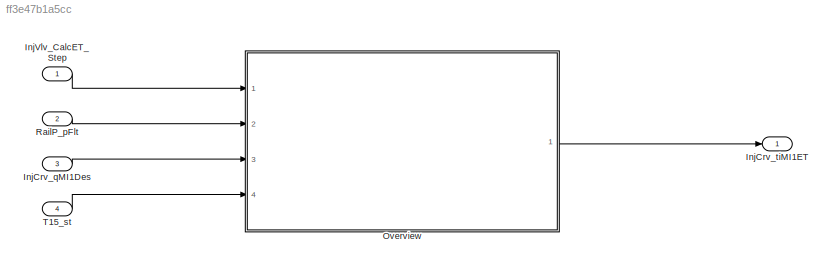
MODEL slx_ff3e47b1a5cc
KIND model
CONFIG AbsTol = auto
CONFIG EnableMultiTasking = off
CONFIG FixedStep = 0.001
CONFIG MaxStep = auto
CONFIG MinStep = auto
CONFIG RelTol = 1e-3
CONFIG SampleTimeConstraint = Unconstrained
CONFIG SolverName = FixedStepDiscrete
CONFIG StartTime = 0.0
CONFIG StopTime = Inf
BLOCK [Inport] InjCrv_qMI1Des
  Description = desired MI1 injection quantity
  OutDataTypeStr = InjMass
  OutMax = 319
  OutMin = -319
  Port = 3
  PortDimensions = [1 1]
  Unit = mg/hub
BLOCK [Outport] InjCrv_tiMI1ET
  Description = Estimated MI1 energizing time
  OutDataTypeStr = uSec4
  OutMax = 13106
  OutMin = -13107
  PortDimensions = [1 1]
  Unit = us
BLOCK [Inport] InjVlv_CalcET_Step
  OutputFunctionCall = on
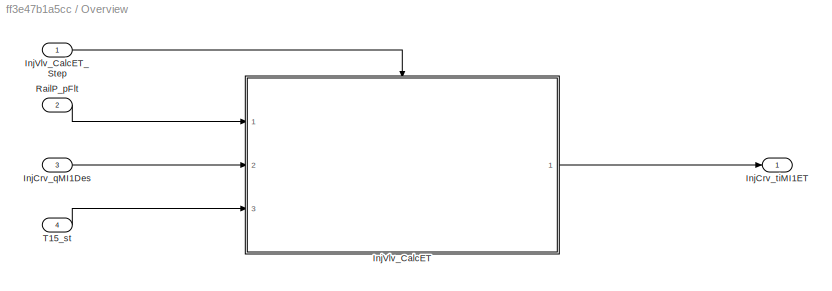
BLOCK [SubSystem] Overview
  Ports = [4, 1]
  RequestExecContextInheritance = off
BLOCK [Inport] Overview/InjCrv_qMI1Des
  Port = 3
BLOCK [Outport] Overview/InjCrv_tiMI1ET
  VectorParamsAs1DForOutWhenUnconnected = off
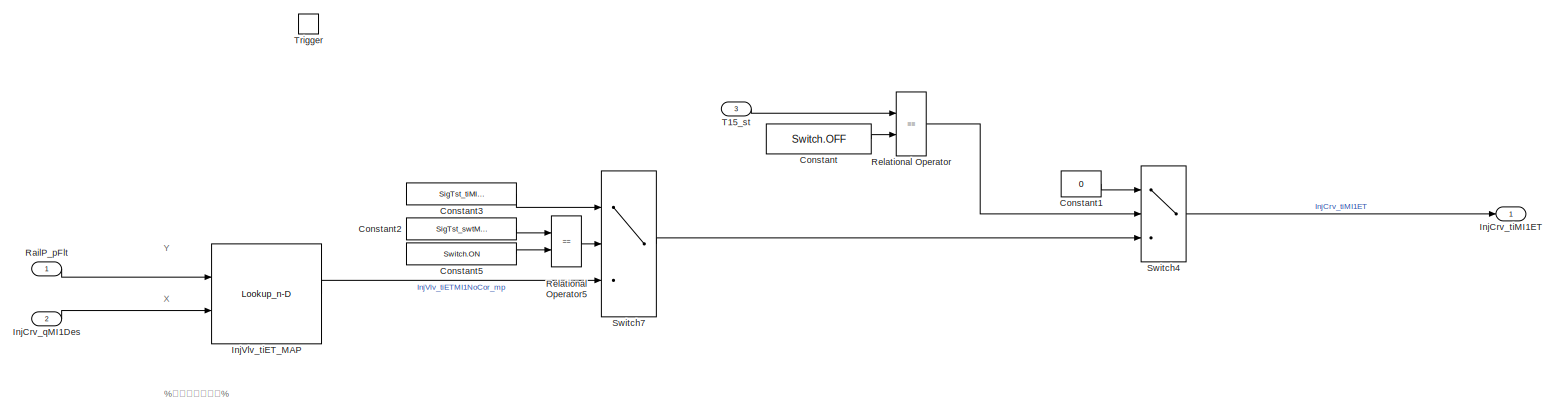
[diagram: Overview/InjVlv_CalcET - part 1/1, most of the canvas]
BLOCK [SubSystem] Overview/InjVlv_CalcET
  Ports = [3, 1, 0, 1]
  RequestExecContextInheritance = off
BLOCK [Constant] Overview/InjVlv_CalcET/Constant
  Value = Switch.OFF
BLOCK [Constant] Overview/InjVlv_CalcET/Constant1
  OutDataTypeStr = Inherit: Inherit via back propagation
  Value = 0
BLOCK [Constant] Overview/InjVlv_CalcET/Constant2
  SampleTime = -1
  Value = SigTst_swtMI1ET_C
BLOCK [Constant] Overview/InjVlv_CalcET/Constant3
  SampleTime = -1
  Value = SigTst_tiMI1ET_C
BLOCK [Constant] Overview/InjVlv_CalcET/Constant5
  OutDataTypeStr = Inherit: Inherit via back propagation
  Value = Switch.ON
BLOCK [Inport] Overview/InjVlv_CalcET/InjCrv_qMI1Des
  Port = 2
  Tag = mg/hub
BLOCK [Outport] Overview/InjVlv_CalcET/InjCrv_tiMI1ET
  Tag = us
  VectorParamsAs1DForOutWhenUnconnected = off
BLOCK [Lookup_n-D] Overview/InjVlv_CalcET/InjVlv_tiET_MAP
  BeginIndexSearchUsingPreviousIndexResult = on
  BreakpointsForDimension1 = InjVlv_tiET_MAPY
  BreakpointsForDimension2 = InjVlv_tiET_MAPX
  ExtrapMethod = Clip
  IndexSearchMethod = Linear search
  InputPortMap = u0,u1
  InputSameDT = off
  InternalRulePriority = Speed
  OutDataTypeStr = Inherit: Inherit via back propagation
  Ports = [2, 1]
  SaturateOnIntegerOverflow = on
  Table = InjVlv_tiET_MAP
  UseLastTableValue = on
BLOCK [Inport] Overview/InjVlv_CalcET/RailP_pFlt
  Tag = bar
BLOCK [RelationalOperator] Overview/InjVlv_CalcET/Relational Operator
  InputSameDT = off
  Operator = ==
  OutDataTypeStr = boolean
  Ports = [2, 1]
  RndMeth = Simplest
BLOCK [RelationalOperator] Overview/InjVlv_CalcET/Relational Operator5
  Operator = ==
  OutDataTypeStr = boolean
  Ports = [2, 1]
  RndMeth = Simplest
BLOCK [Switch] Overview/InjVlv_CalcET/Switch4
  Criteria = u2 ~= 0
  SaturateOnIntegerOverflow = off
BLOCK [Switch] Overview/InjVlv_CalcET/Switch7
  Criteria = u2 ~= 0
  SaturateOnIntegerOverflow = off
  Threshold = CEngDst_switch_conv.OFF
BLOCK [Inport] Overview/InjVlv_CalcET/T15_st
  Port = 3
BLOCK [TriggerPort] Overview/InjVlv_CalcET/Trigger
  PortDimensions = 1
  Ports = []
  StatesWhenEnabling = held
  TriggerType = function-call
  VariantControl = Variant
BLOCK [Inport] Overview/InjVlv_CalcET_Step
BLOCK [Inport] Overview/RailP_pFlt
  Port = 2
BLOCK [Inport] Overview/T15_st
  Port = 4
BLOCK [Inport] RailP_pFlt
  Description = Maximum rail pressure of the last 10 sampling cycle
  OutDataTypeStr = Press_bar1
  OutMax = 2000
  OutMin = 0
  Port = 2
  PortDimensions = [1 1]
  Unit = bar
BLOCK [Inport] T15_st
  Description = Terminal 15 status after debouncing
  OutDataTypeStr = Enum:Switch
  Port = 4
  PortDimensions = [1 1]
ANNOTATION Overview/InjVlv_CalcET: %油量，脉宽转换%
ANNOTATION Overview/InjVlv_CalcET: X
ANNOTATION Overview/InjVlv_CalcET: Y
LINE InjCrv_qMI1Des:1 -> Overview:3
LINE InjVlv_CalcET_Step:1 -> Overview:1
LINE Overview/InjCrv_qMI1Des:1 -> Overview/InjVlv_CalcET:2
LINE Overview/InjVlv_CalcET/Constant1:1 -> Overview/InjVlv_CalcET/Switch4:1
LINE Overview/InjVlv_CalcET/Constant2:1 -> Overview/InjVlv_CalcET/Relational Operator5:1
LINE Overview/InjVlv_CalcET/Constant3:1 -> Overview/InjVlv_CalcET/Switch7:1
LINE Overview/InjVlv_CalcET/Constant5:1 -> Overview/InjVlv_CalcET/Relational Operator5:2
LINE Overview/InjVlv_CalcET/Constant:1 -> Overview/InjVlv_CalcET/Relational Operator:2
LINE Overview/InjVlv_CalcET/InjCrv_qMI1Des:1 -> Overview/InjVlv_CalcET/InjVlv_tiET_MAP:2
LINE Overview/InjVlv_CalcET/InjVlv_tiET_MAP:1 -> Overview/InjVlv_CalcET/Switch7:3
LINE Overview/InjVlv_CalcET/RailP_pFlt:1 -> Overview/InjVlv_CalcET/InjVlv_tiET_MAP:1
LINE Overview/InjVlv_CalcET/Relational Operator5:1 -> Overview/InjVlv_CalcET/Switch7:2
LINE Overview/InjVlv_CalcET/Relational Operator:1 -> Overview/InjVlv_CalcET/Switch4:2
LINE Overview/InjVlv_CalcET/Switch4:1 -> Overview/InjVlv_CalcET/InjCrv_tiMI1ET:1
LINE Overview/InjVlv_CalcET/Switch7:1 -> Overview/InjVlv_CalcET/Switch4:3
LINE Overview/InjVlv_CalcET/T15_st:1 -> Overview/InjVlv_CalcET/Relational Operator:1
LINE Overview/InjVlv_CalcET:1 -> Overview/InjCrv_tiMI1ET:1
LINE Overview/InjVlv_CalcET_Step:1 -> Overview/InjVlv_CalcET:trigger
LINE Overview/RailP_pFlt:1 -> Overview/InjVlv_CalcET:1
LINE Overview/T15_st:1 -> Overview/InjVlv_CalcET:3
LINE Overview:1 -> InjCrv_tiMI1ET:1
LINE RailP_pFlt:1 -> Overview:2
LINE T15_st:1 -> Overview:4
